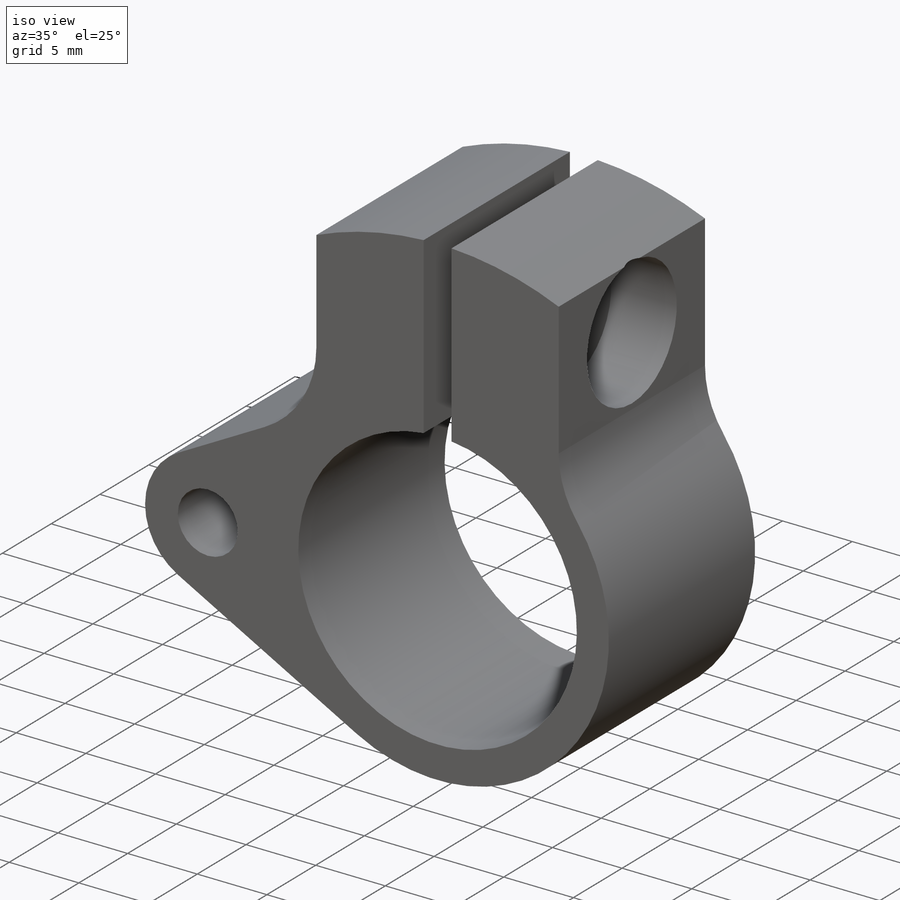
[diagram: iso view]
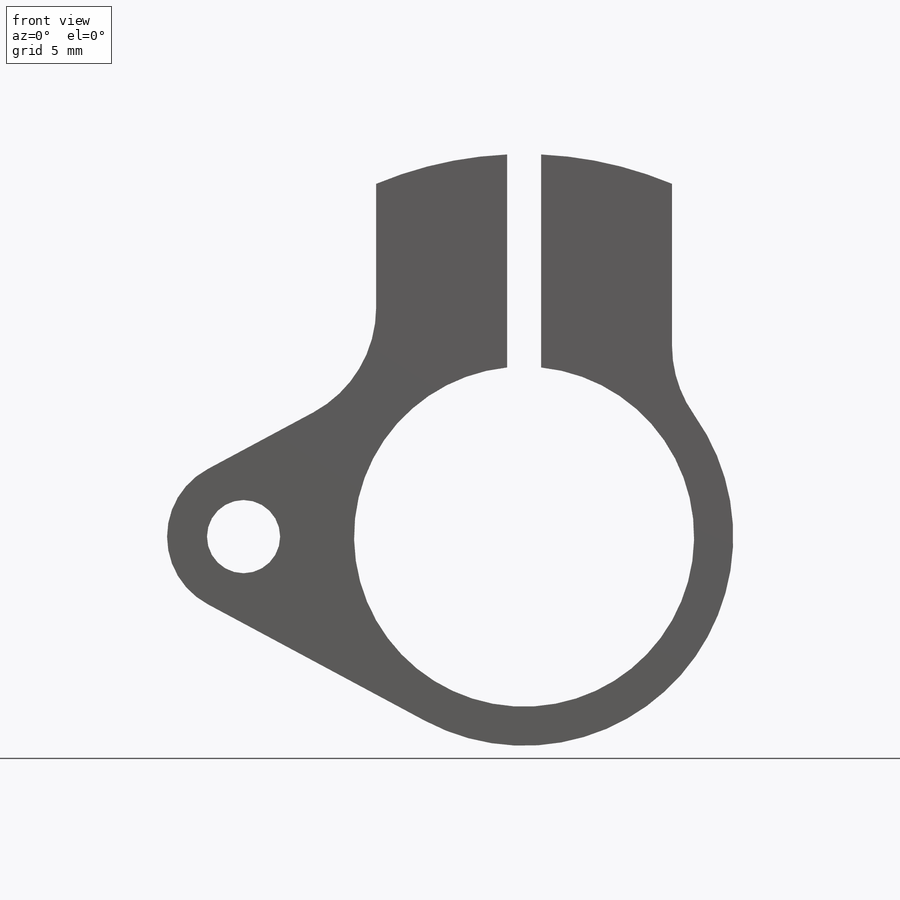
[diagram: front view]
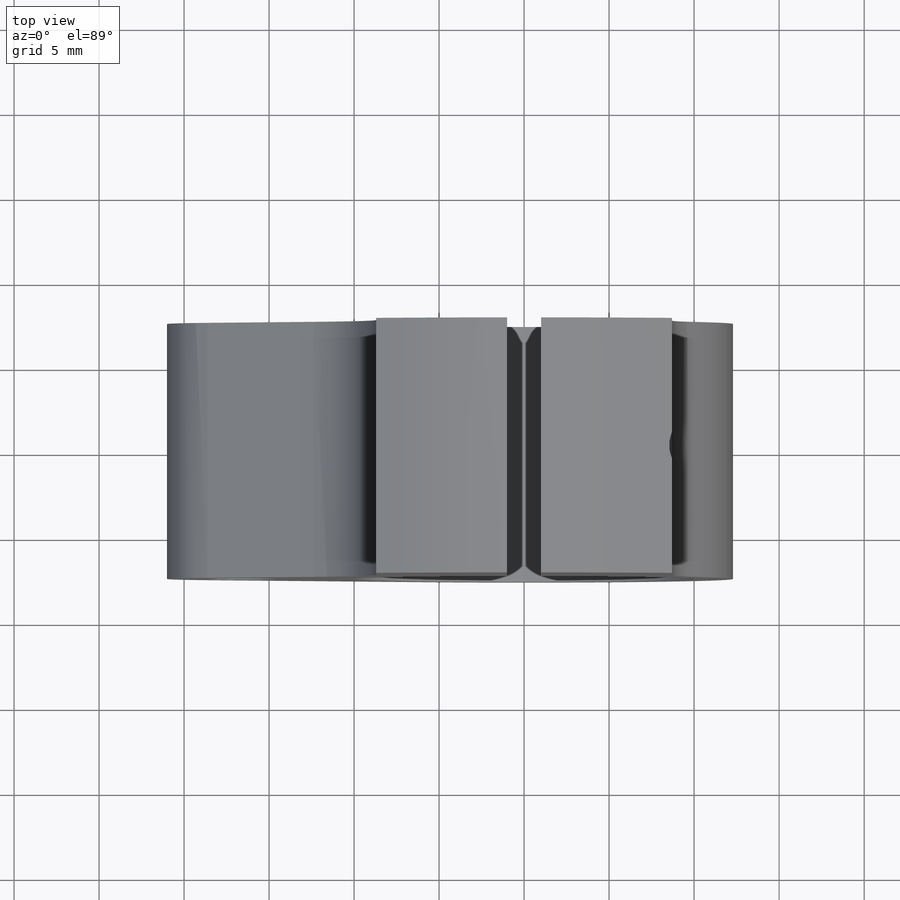
[diagram: top view]
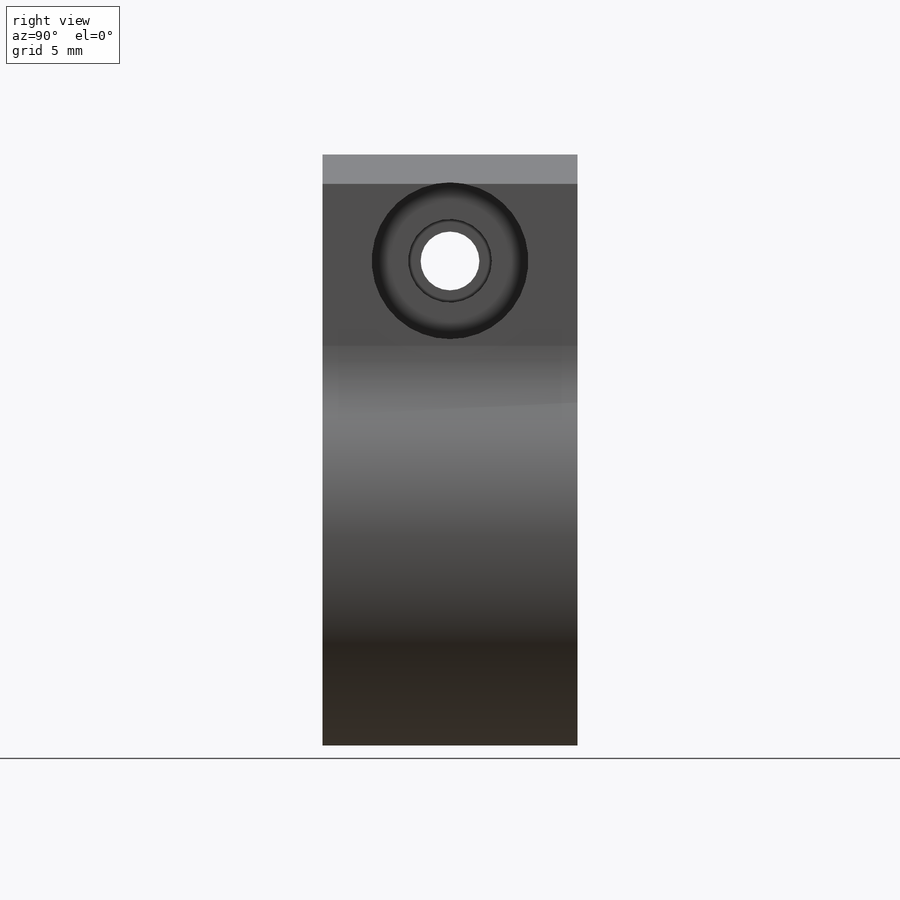
[diagram: right view]
SOLIDWORKS PART (.sldprt)
format: sldprt  version: not decoded by parser v0  size: 443,904 bytes
history: native  units: mm
features: sketch x9, hole x3, cut_extrude x2, material x1, extrude x1, fillet x1, thread x1 (+11 scaffold rows collapsed)
feature tree (29):
  scaffold x11  (default folders/planes/origin — collapsed)
  material  "6061-T6 (SS)"
  sketch  "Sketch1"  dims[D1=20.0mm D2=24.6mm D4=45.0mm D7=9.0mm D8=24.0mm D3=6.858mm D5=6.35mm D6=17.4mm]
  extrude  "Boss-Extrude1"  Depth=15mm
  fillet  "Fillet1"  Radius=7mm
  sketch  "Sketch2"  dims[D1=2.0mm]
  cut_extrude  "Cut-Extrude1"  [1 undecoded]
  sketch  "Sketch3"  dims[D1=9.2075mm]
  cut_extrude  "Cut-Extrude2"  Depth=15mm
  hole  "#8 Clearance Hole1"  Diameter=4.9149mm Depth=3mm
  sketch  "Sketch5"
  sketch  "Sketch4"  dims[hole-wizard template sketch: 60 standard entries collapsed; hole parameters kept: c18.Thru Hole Depth=3.0mm]
  hole  "#8-32 Tapped Hole1"  Diameter=3.4544mm Depth=20mm
  sketch  "Sketch7"
  sketch  "Sketch6"  dims[hole-wizard template sketch: 60 standard entries collapsed; hole parameters kept: c18.Thru Tap Drill Depth=20.0mm]
  thread  "Hole Thread3"  Diameter=7.7mm  [1 undecoded]
  hole  "#8 Clearance Hole2"  Diameter=4.3053mm Depth=15mm
  sketch  "Sketch11"
  sketch  "Sketch10"  dims[hole-wizard template sketch: 60 standard entries collapsed; hole parameters kept: c18.Thru Hole Depth=15.0mm]
decode coverage: 13 of 17 modeling features carry decoded parameters
note: ~ marks probable driven/reference dimensions
note: 2 parameter values undecoded
note: suppression state not decoded; provenance and decode notes live in map.json
